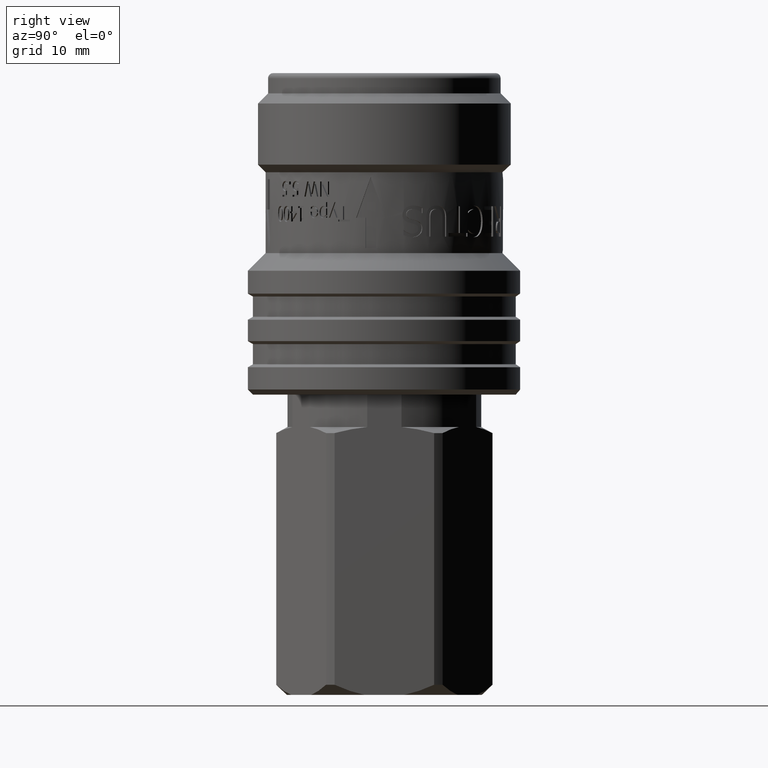
[diagram: clean part render]
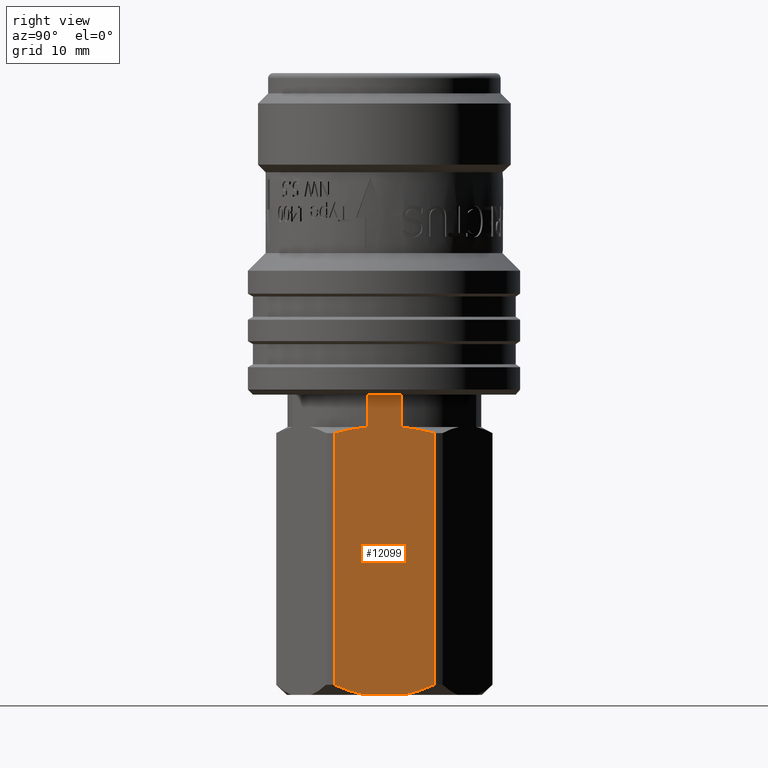
[diagram: same view with one face highlighted and labeled with its STEP entity id]
A machine part, right view. The second image highlights one B-rep face of the part: STEP entity #12099.
In plain terms, the highlighted planar face has unit normal (-1, -0, 0).
Its self-contained STEP definition (entity closure, byte-faithful):
#1281=(
BOUNDED_CURVE()
B_SPLINE_CURVE(2,(#15570,#15571,#15572),.UNSPECIFIED.,.F.,.F.)
B_SPLINE_CURVE_WITH_KNOTS((3,3),(0.,0.313326242562472),.UNSPECIFIED.)
CURVE()
GEOMETRIC_REPRESENTATION_ITEM()
RATIONAL_B_SPLINE_CURVE((1.,1.01072399218892,1.))
REPRESENTATION_ITEM($)
);
#1282=(
BOUNDED_CURVE()
B_SPLINE_CURVE(2,(#15596,#15597,#15598),.UNSPECIFIED.,.F.,.F.)
B_SPLINE_CURVE_WITH_KNOTS((3,3),(0.,0.328759434940943),.UNSPECIFIED.)
CURVE()
GEOMETRIC_REPRESENTATION_ITEM()
RATIONAL_B_SPLINE_CURVE((1.,1.01282790719781,1.))
REPRESENTATION_ITEM($)
);
#1283=(
BOUNDED_CURVE()
B_SPLINE_CURVE(2,(#15616,#15617,#15618),.UNSPECIFIED.,.F.,.F.)
B_SPLINE_CURVE_WITH_KNOTS((3,3),(0.,0.328759434940943),.UNSPECIFIED.)
CURVE()
GEOMETRIC_REPRESENTATION_ITEM()
RATIONAL_B_SPLINE_CURVE((1.,1.01282790719791,1.))
REPRESENTATION_ITEM($)
);
#1284=(
BOUNDED_CURVE()
B_SPLINE_CURVE(2,(#15621,#15622,#15623),.UNSPECIFIED.,.F.,.F.)
B_SPLINE_CURVE_WITH_KNOTS((3,3),(0.,0.313326242562472),.UNSPECIFIED.)
CURVE()
GEOMETRIC_REPRESENTATION_ITEM()
RATIONAL_B_SPLINE_CURVE((1.,1.01072399218894,1.))
REPRESENTATION_ITEM($)
);
#1306=LINE($,#15515,#2079);
#1316=LINE($,#15584,#2089);
#1317=LINE($,#15607,#2090);
#1318=LINE($,#15612,#2091);
#1319=LINE($,#15614,#2092);
#1320=LINE($,#15620,#2093);
#2079=VECTOR($,#13442,3.91918358845309);
#2089=VECTOR($,#13484,24.8937822173509);
#2090=VECTOR($,#13519,3.20000000000003);
#2091=VECTOR($,#13526,3.38969025133559);
#2092=VECTOR($,#13527,3.20000000000003);
#2093=VECTOR($,#13528,24.8937822173509);
#2861=FACE_OUTER_BOUND($,#3525,.T.);
#3525=EDGE_LOOP($,(#7636,#7637,#7638,#7639,#7640,#7641,#7642,#7643,#7644,
#7645));
#4511=VERTEX_POINT($,#15512);
#4512=VERTEX_POINT($,#15514);
#4527=VERTEX_POINT($,#15568);
#4528=VERTEX_POINT($,#15582);
#4529=VERTEX_POINT($,#15594);
#4530=VERTEX_POINT($,#15605);
#4531=VERTEX_POINT($,#15611);
#4532=VERTEX_POINT($,#15613);
#4533=VERTEX_POINT($,#15615);
#4534=VERTEX_POINT($,#15619);
#5730=EDGE_CURVE($,#4511,#4512,#1306,.T.);
#5750=EDGE_CURVE($,#4527,#4511,#1281,.T.);
#5756=EDGE_CURVE($,#4528,#4527,#1316,.T.);
#5762=EDGE_CURVE($,#4529,#4528,#1282,.T.);
#5765=EDGE_CURVE($,#4530,#4529,#1317,.T.);
#5767=EDGE_CURVE($,#4530,#4531,#1318,.T.);
#5768=EDGE_CURVE($,#4532,#4531,#1319,.T.);
#5769=EDGE_CURVE($,#4533,#4532,#1283,.T.);
#5770=EDGE_CURVE($,#4534,#4533,#1320,.T.);
#5771=EDGE_CURVE($,#4512,#4534,#1284,.T.);
#7636=ORIENTED_EDGE($,*,*,#5767,.T.);
#7637=ORIENTED_EDGE($,*,*,#5768,.F.);
#7638=ORIENTED_EDGE($,*,*,#5769,.F.);
#7639=ORIENTED_EDGE($,*,*,#5770,.F.);
#7640=ORIENTED_EDGE($,*,*,#5771,.F.);
#7641=ORIENTED_EDGE($,*,*,#5730,.F.);
#7642=ORIENTED_EDGE($,*,*,#5750,.F.);
#7643=ORIENTED_EDGE($,*,*,#5756,.F.);
#7644=ORIENTED_EDGE($,*,*,#5762,.F.);
#7645=ORIENTED_EDGE($,*,*,#5765,.F.);
#11105=PLANE($,#12806);
#12099=ADVANCED_FACE($,(#2861),#11105,.F.);
#12806=AXIS2_PLACEMENT_3D($,#15610,#13524,#13525);
#13442=DIRECTION($,(1.12749318728954E-016,-1.,0.));
#13484=DIRECTION($,(0.,0.,-1.));
#13519=DIRECTION($,(0.,0.,-1.));
#13524=DIRECTION('center_axis',(-1.,-1.12749318728954E-016,0.));
#13525=DIRECTION('ref_axis',(-1.77635683940025E-016,1.,0.));
#13526=DIRECTION($,(1.12749318728954E-016,-1.,0.));
#13527=DIRECTION($,(0.,0.,1.));
#13528=DIRECTION($,(0.,0.,1.));
#15512=CARTESIAN_POINT('',(9.5,1.95959179422655,-43.75));
#15514=CARTESIAN_POINT('',(9.5,-1.95959179422654,-43.75));
#15515=CARTESIAN_POINT($,(9.5,1.35079327498178,-43.75));
#15568=CARTESIAN_POINT('',(9.5,4.92341345003647,-42.75));
#15570=CARTESIAN_POINT('Ctrl Pts',(9.5,4.92341345003647,-42.75));
#15571=CARTESIAN_POINT('Ctrl Pts',(9.5,3.3688599344891,-43.4652999707708));
#15572=CARTESIAN_POINT('Ctrl Pts',(9.5,1.95959179422654,-43.75));
#15582=CARTESIAN_POINT('',(9.5,4.92341345003644,-17.8562177826491));
#15584=CARTESIAN_POINT($,(9.5,4.92341345003646,-30.3031088913246));
#15594=CARTESIAN_POINT('',(9.5,1.69484512566779,-17.25));
#15596=CARTESIAN_POINT('Ctrl Pts',(9.5,1.69484512566779,-17.25));
#15597=CARTESIAN_POINT('Ctrl Pts',(9.5,3.22583698464361,-17.4052440483042));
#15598=CARTESIAN_POINT('Ctrl Pts',(9.5,4.92341345003644,-17.8562177826491));
#15605=CARTESIAN_POINT('',(9.5,1.69484512566779,-14.05));
#15607=CARTESIAN_POINT($,(9.5,1.69484512566779,-14.5));
#15610=CARTESIAN_POINT('Origin',(9.5,-4.92341345003644,-11.75));
#15611=CARTESIAN_POINT('',(9.5,-1.69484512566779,-14.05));
#15612=CARTESIAN_POINT($,(9.5,2.07901606057399,-14.05));
#15613=CARTESIAN_POINT('',(9.5,-1.69484512566779,-17.25));
#15614=CARTESIAN_POINT($,(9.5,-1.69484512566779,-14.5));
#15615=CARTESIAN_POINT('',(9.5,-4.92341345003644,-17.8562177826491));
#15616=CARTESIAN_POINT('Ctrl Pts',(9.5,-4.92341345003644,-17.8562177826491));
#15617=CARTESIAN_POINT('Ctrl Pts',(9.5,-3.22583698464361,-17.4052440483042));
#15618=CARTESIAN_POINT('Ctrl Pts',(9.5,-1.69484512566779,-17.25));
#15619=CARTESIAN_POINT('',(9.5,-4.92341345003647,-42.75));
#15620=CARTESIAN_POINT($,(9.5,-4.92341345003645,-30.3031088913246));
#15621=CARTESIAN_POINT('Ctrl Pts',(9.5,-1.95959179422654,-43.75));
#15622=CARTESIAN_POINT('Ctrl Pts',(9.5,-3.3688599344891,-43.4652999707708));
#15623=CARTESIAN_POINT('Ctrl Pts',(9.5,-4.92341345003647,-42.75));